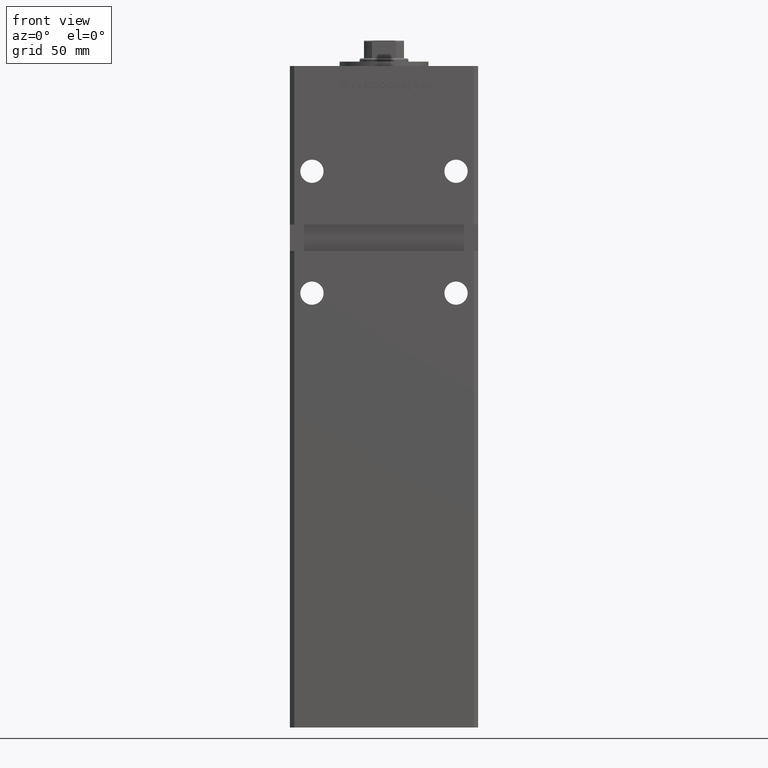
[diagram: clean part render]
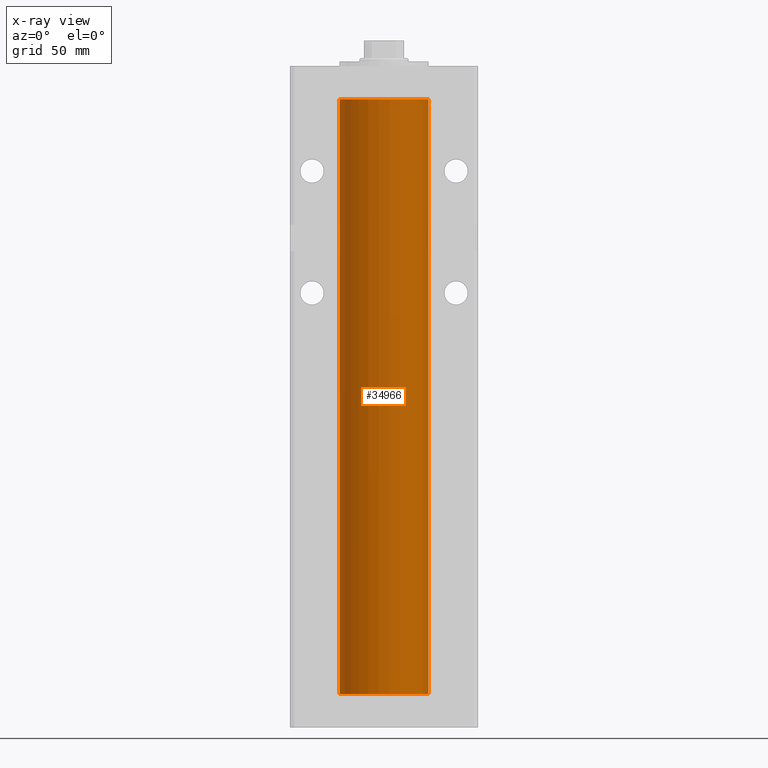
[diagram: x-ray — body ghosted, one internal face saturated and labeled with its STEP entity id]
A machine part, front view, then the same camera in x-ray: the body is ghosted and one INTERNAL B-rep face — a face not visible from any outside direction — is saturated and labeled: STEP entity #34966.
In plain terms, the highlighted cylindrical surface (partial cylindrical patch) has radius 20 mm, axis along (-0, -0, -1).
Its self-contained STEP definition (entity closure, byte-faithful):
#2587 = LINE ( 'NONE', #22220, #33810 ) ;
#4124 = DIRECTION ( 'NONE',  ( -0.000000000000000000, -0.000000000000000000, -1.000000000000000000 ) ) ;
#7888 = LINE ( 'NONE', #36379, #42868 ) ;
#10304 = CARTESIAN_POINT ( 'NONE',  ( -20.00000000000000000, 0.000000000000000000, 0.000000000000000000 ) ) ;
#10641 = DIRECTION ( 'NONE',  ( -0.000000000000000000, -0.000000000000000000, -1.000000000000000000 ) ) ;
#11429 = EDGE_CURVE ( 'NONE', #38607, #46948, #29684, .T. ) ;
#11581 = ORIENTED_EDGE ( 'NONE', *, *, #51101, .F. ) ;
#11694 = AXIS2_PLACEMENT_3D ( 'NONE', #45261, #20560, #16523 ) ;
#14422 = CARTESIAN_POINT ( 'NONE',  ( -20.00000000000000000, 0.000000000000000000, 268.5000000000000000 ) ) ;
#15025 = CYLINDRICAL_SURFACE ( 'NONE', #17840, 20.00000000000000000 ) ;
#16523 = DIRECTION ( 'NONE',  ( 1.000000000000000000, 0.000000000000000000, 0.000000000000000000 ) ) ;
#17840 = AXIS2_PLACEMENT_3D ( 'NONE', #43767, #31679, #29228 ) ;
#19425 = EDGE_CURVE ( 'NONE', #35185, #40169, #21782, .T. ) ;
#19940 = ORIENTED_EDGE ( 'NONE', *, *, #19425, .T. ) ;
#20286 = ORIENTED_EDGE ( 'NONE', *, *, #40091, .T. ) ;
#20560 = DIRECTION ( 'NONE',  ( -0.000000000000000000, 0.000000000000000000, 1.000000000000000000 ) ) ;
#21782 = CIRCLE ( 'NONE', #51830, 20.00000000000000000 ) ;
#22220 = CARTESIAN_POINT ( 'NONE',  ( -20.00000000000000000, 0.000000000000000000, 268.5000000000000000 ) ) ;
#23888 = FACE_OUTER_BOUND ( 'NONE', #32076, .T. ) ;
#25614 = CARTESIAN_POINT ( 'NONE',  ( 20.00000000000000000, 2.449293598294706513E-15, 268.5000000000000000 ) ) ;
#29228 = DIRECTION ( 'NONE',  ( -1.000000000000000000, 0.000000000000000000, 0.000000000000000000 ) ) ;
#29684 = CIRCLE ( 'NONE', #11694, 20.00000000000000000 ) ;
#31679 = DIRECTION ( 'NONE',  ( -0.000000000000000000, -0.000000000000000000, -1.000000000000000000 ) ) ;
#32076 = EDGE_LOOP ( 'NONE', ( #19940, #20286, #40556, #11581 ) ) ;
#33810 = VECTOR ( 'NONE', #10641, 1000.000000000000000 ) ;
#34309 = DIRECTION ( 'NONE',  ( 1.000000000000000000, 0.000000000000000000, 0.000000000000000000 ) ) ;
#34966 = ADVANCED_FACE ( 'NONE', ( #23888 ), #15025, .F. ) ;
#35185 = VERTEX_POINT ( 'NONE', #14422 ) ;
#36379 = CARTESIAN_POINT ( 'NONE',  ( 20.00000000000000000, 2.449293598294706513E-15, 268.5000000000000000 ) ) ;
#37816 = DIRECTION ( 'NONE',  ( -0.000000000000000000, 0.000000000000000000, 1.000000000000000000 ) ) ;
#38607 = VERTEX_POINT ( 'NONE', #10304 ) ;
#40091 = EDGE_CURVE ( 'NONE', #40169, #46948, #7888, .T. ) ;
#40169 = VERTEX_POINT ( 'NONE', #25614 ) ;
#40556 = ORIENTED_EDGE ( 'NONE', *, *, #11429, .F. ) ;
#42364 = CARTESIAN_POINT ( 'NONE',  ( 0.000000000000000000, 0.000000000000000000, 268.5000000000000000 ) ) ;
#42868 = VECTOR ( 'NONE', #4124, 1000.000000000000000 ) ;
#43121 = CARTESIAN_POINT ( 'NONE',  ( 20.00000000000000000, 2.449293598294706513E-15, 0.000000000000000000 ) ) ;
#43767 = CARTESIAN_POINT ( 'NONE',  ( 0.000000000000000000, 0.000000000000000000, 268.5000000000000000 ) ) ;
#45261 = CARTESIAN_POINT ( 'NONE',  ( 0.000000000000000000, 0.000000000000000000, 0.000000000000000000 ) ) ;
#46948 = VERTEX_POINT ( 'NONE', #43121 ) ;
#51101 = EDGE_CURVE ( 'NONE', #35185, #38607, #2587, .T. ) ;
#51830 = AXIS2_PLACEMENT_3D ( 'NONE', #42364, #37816, #34309 ) ;